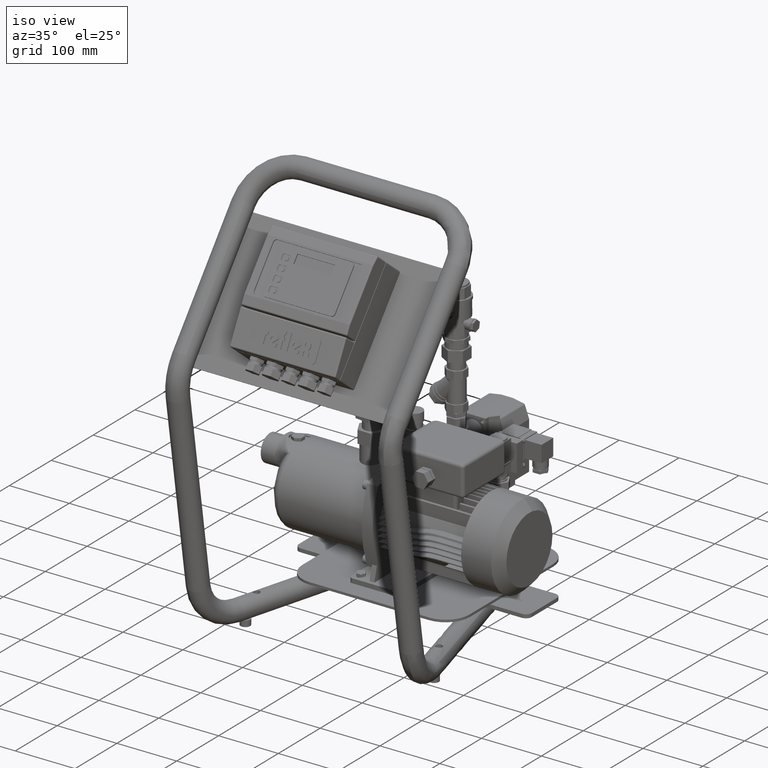
[diagram: clean part render]
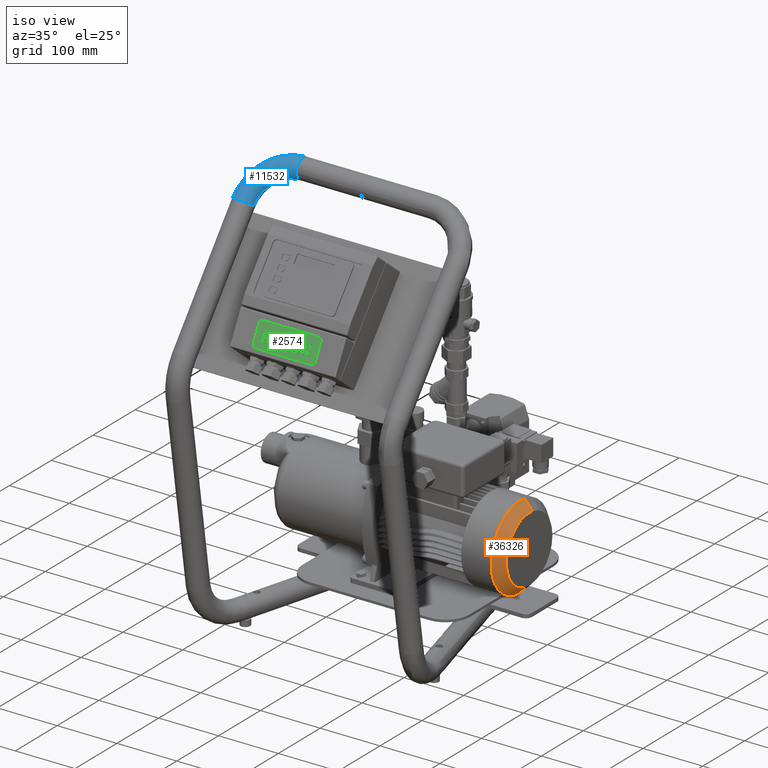
[diagram: same view with three faces highlighted in distinct colors, each labeled with its STEP entity id]
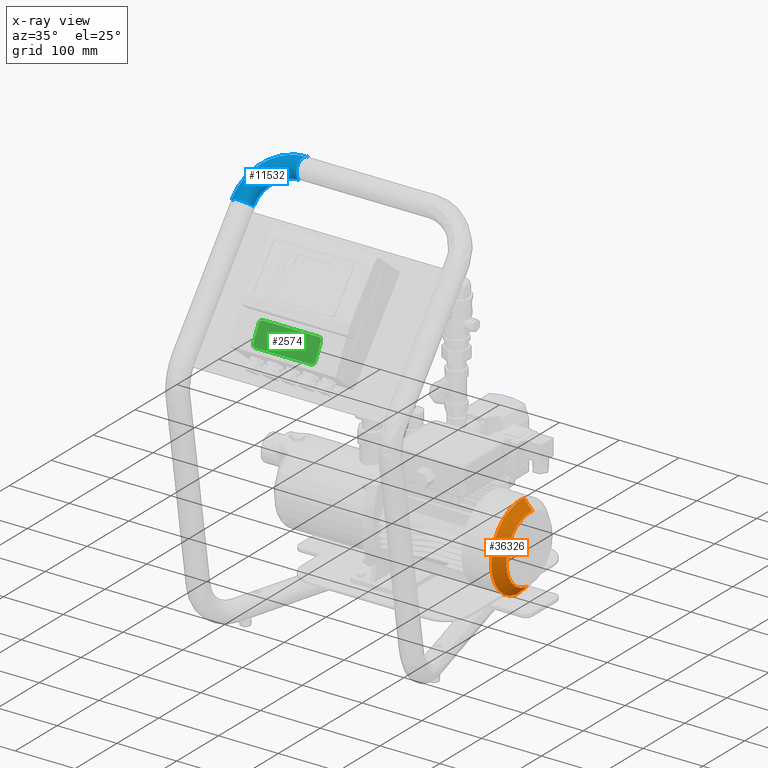
[diagram: x-ray of the same camera — body ghosted, the three highlighted faces saturated]
A machine part, iso view with three faces highlighted in distinct colors.
The next image is the same camera in x-ray (body ghosted, the three faces saturated) — at least one of them is partly hidden behind the body in this view.
Their STEP definitions:

[orange] entity #36326 — the highlighted conical surface has half-angle 45 deg.
#35521=CARTESIAN_POINT('',(177.999999999999970,-23.999999999999975,209.919017567234420));
#35522=VERTEX_POINT('',#35521);
#36277=CARTESIAN_POINT('',(177.999999999999970,-41.999999999999979,71.080982432765566));
#36278=VERTEX_POINT('',#36277);
#36285=CARTESIAN_POINT('',(177.999999999999970,-32.999999999999979,140.500000000000000));
#36286=DIRECTION('',(1.000000000000000,1.551542E-018,1.196739E-017));
#36287=DIRECTION('',(-1.206755E-017,0.128571428571429,0.991700250960492));
#36288=AXIS2_PLACEMENT_3D('',#36285,#36286,#36287);
#36289=CIRCLE('',#36288,70.0);
#36290=EDGE_CURVE('',#35522,#36278,#36289,.T.);
#36295=CARTESIAN_POINT('',(185.499999999999970,-32.999999999999979,140.500000000000000));
#36296=DIRECTION('',(-1.0,-9.385874E-017,3.398965E-032));
#36297=DIRECTION('',(-1.206755E-017,0.128571428571429,0.991700250960492));
#36298=AXIS2_PLACEMENT_3D('',#36295,#36296,#36297);
#36299=CONICAL_SURFACE('',#36298,62.500000000000014,44.999999999999993);
#36300=CARTESIAN_POINT('',(192.999999999999970,-25.928571428571402,195.043513802827050));
#36301=VERTEX_POINT('',#36300);
#36302=CARTESIAN_POINT('',(177.999999999999970,-23.999999999999975,209.919017567234420));
#36303=DIRECTION('',(0.707106781186548,-0.090913729009699,-0.701237972358564));
#36304=VECTOR('',#36303,21.213203435596423);
#36305=LINE('',#36302,#36304);
#36306=EDGE_CURVE('',#35522,#36301,#36305,.T.);
#36307=ORIENTED_EDGE('',*,*,#36306,.F.);
#36308=ORIENTED_EDGE('',*,*,#36290,.T.);
#36309=CARTESIAN_POINT('',(192.999999999999970,-40.071428571428548,85.956486197172936));
#36310=VERTEX_POINT('',#36309);
#36311=CARTESIAN_POINT('',(177.999999999999970,-41.999999999999979,71.080982432765566));
#36312=DIRECTION('',(0.707106781186548,0.090913729009699,0.701237972358564));
#36313=VECTOR('',#36312,21.213203435596423);
#36314=LINE('',#36311,#36313);
#36315=EDGE_CURVE('',#36278,#36310,#36314,.T.);
#36316=ORIENTED_EDGE('',*,*,#36315,.T.);
#36317=CARTESIAN_POINT('',(192.999999999999970,-32.999999999999986,140.500000000000000));
#36318=DIRECTION('',(-1.000000000000000,-1.551542E-018,-1.196739E-017));
#36319=DIRECTION('',(-1.206755E-017,0.128571428571429,0.991700250960492));
#36320=AXIS2_PLACEMENT_3D('',#36317,#36318,#36319);
#36321=CIRCLE('',#36320,55.000000000000007);
#36322=EDGE_CURVE('',#36310,#36301,#36321,.T.);
#36323=ORIENTED_EDGE('',*,*,#36322,.T.);
#36324=EDGE_LOOP('',(#36307,#36308,#36316,#36323));
#36325=FACE_OUTER_BOUND('',#36324,.T.);
#36326=ADVANCED_FACE('',(#36325),#36299,.T.);

[blue] entity #11532 — the highlighted toroidal blend (fillet) surface has major radius 70 mm and minor (blend) radius 16.85 mm.
#11471=CARTESIAN_POINT('',(-108.150000000000060,-186.469369452282170,622.601935115610670));
#11472=DIRECTION('',(-2.429091E-016,-0.782115212634134,0.623133849318317));
#11473=DIRECTION('',(-1.144678E-016,-0.623133849318317,-0.782115212634134));
#11474=AXIS2_PLACEMENT_3D('',#11471,#11472,#11473);
#11475=TOROIDAL_SURFACE('',#11474,69.999999999999986,16.850000000000001);
#11476=CARTESIAN_POINT('',(-195.000000000000060,-186.469369452282190,622.601935115610670));
#11477=VERTEX_POINT('',#11476);
#11478=CARTESIAN_POINT('',(-108.150000000000060,-132.350194638986380,690.528641332885170));
#11479=VERTEX_POINT('',#11478);
#11480=CARTESIAN_POINT('',(-108.150000000000060,-186.469369452282190,622.601935115610670));
#11481=DIRECTION('',(2.429091E-016,0.782115212634134,-0.623133849318317));
#11482=DIRECTION('',(-1.636253E-016,-0.623133849318317,-0.782115212634134));
#11483=AXIS2_PLACEMENT_3D('',#11480,#11481,#11482);
#11484=CIRCLE('',#11483,86.849999999999966);
#11485=EDGE_CURVE('',#11477,#11479,#11484,.T.);
#11486=ORIENTED_EDGE('',*,*,#11485,.F.);
#11487=CARTESIAN_POINT('',(-167.650194638986390,-196.776585320580720,630.813992618156930));
#11488=VERTEX_POINT('',#11487);
#11489=CARTESIAN_POINT('',(-178.150000000000030,-186.469369452282220,622.601935115610670));
#11490=DIRECTION('',(1.387779E-016,0.623133849318317,0.782115212634134));
#11491=DIRECTION('',(0.623133849318317,-0.611704205833737,0.487362463059122));
#11492=AXIS2_PLACEMENT_3D('',#11489,#11490,#11491);
#11493=CIRCLE('',#11492,16.850000000000005);
#11494=EDGE_CURVE('',#11477,#11488,#11493,.T.);
#11495=ORIENTED_EDGE('',*,*,#11494,.T.);
#11496=CARTESIAN_POINT('',(-161.300000000000010,-186.469369452282190,622.601935115610670));
#11497=VERTEX_POINT('',#11496);
#11498=CARTESIAN_POINT('',(-178.150000000000030,-186.469369452282220,622.601935115610670));
#11499=DIRECTION('',(1.387779E-016,0.623133849318317,0.782115212634134));
#11500=DIRECTION('',(0.623133849318317,-0.611704205833737,0.487362463059122));
#11501=AXIS2_PLACEMENT_3D('',#11498,#11499,#11500);
#11502=CIRCLE('',#11501,16.850000000000005);
#11503=EDGE_CURVE('',#11488,#11497,#11502,.T.);
#11504=ORIENTED_EDGE('',*,*,#11503,.T.);
#11505=CARTESIAN_POINT('',(-108.150000000000060,-153.349805361013670,664.171358667114870));
#11506=VERTEX_POINT('',#11505);
#11507=CARTESIAN_POINT('',(-108.150000000000060,-186.469369452282190,622.601935115610670));
#11508=DIRECTION('',(2.429091E-016,0.782115212634134,-0.623133849318317));
#11509=DIRECTION('',(9.742085E-032,-0.623133849318317,-0.782115212634134));
#11510=AXIS2_PLACEMENT_3D('',#11507,#11508,#11509);
#11511=CIRCLE('',#11510,53.149999999999977);
#11512=EDGE_CURVE('',#11497,#11506,#11511,.T.);
#11513=ORIENTED_EDGE('',*,*,#11512,.T.);
#11514=CARTESIAN_POINT('',(-108.150000000000050,-159.699999999999990,677.350000000000020));
#11515=VERTEX_POINT('',#11514);
#11516=CARTESIAN_POINT('',(-108.150000000000050,-142.849999999999990,677.350000000000020));
#11517=DIRECTION('',(1.0,0.0,0.0));
#11518=DIRECTION('',(0.0,-1.0,0.0));
#11519=AXIS2_PLACEMENT_3D('',#11516,#11517,#11518);
#11520=CIRCLE('',#11519,16.850000000000001);
#11521=EDGE_CURVE('',#11515,#11506,#11520,.T.);
#11522=ORIENTED_EDGE('',*,*,#11521,.F.);
#11523=CARTESIAN_POINT('',(-108.150000000000050,-142.849999999999990,677.350000000000020));
#11524=DIRECTION('',(1.0,0.0,0.0));
#11525=DIRECTION('',(0.0,-1.0,0.0));
#11526=AXIS2_PLACEMENT_3D('',#11523,#11524,#11525);
#11527=CIRCLE('',#11526,16.850000000000001);
#11528=EDGE_CURVE('',#11479,#11515,#11527,.T.);
#11529=ORIENTED_EDGE('',*,*,#11528,.F.);
#11530=EDGE_LOOP('',(#11486,#11495,#11504,#11513,#11522,#11529));
#11531=FACE_OUTER_BOUND('',#11530,.T.);
#11532=ADVANCED_FACE('',(#11531),#11475,.T.);

[green] entity #2574 — the highlighted planar face has unit normal (-0, -0.887, 0.4617).
#2499=CARTESIAN_POINT('',(-1.065814E-012,-336.160392955992510,516.950377569624040));
#2500=DIRECTION('',(-9.619845E-030,-0.887010833178222,0.461748613235034));
#2501=DIRECTION('',(1.0,0.0,0.0));
#2502=AXIS2_PLACEMENT_3D('',#2499,#2500,#2501);
#2503=PLANE('',#2502);
#2504=CARTESIAN_POINT('',(-46.365720187500116,-345.281903259890900,499.428119304852030));
#2505=VERTEX_POINT('',#2504);
#2506=CARTESIAN_POINT('',(-51.990720187500116,-342.684567310443750,504.417555241479480));
#2507=VERTEX_POINT('',#2506);
#2508=CARTESIAN_POINT('',(-46.365720187500116,-342.684567310443750,504.417555241479480));
#2509=DIRECTION('',(0.0,0.887010833178222,-0.461748613235034));
#2510=DIRECTION('',(-1.0,0.0,0.0));
#2511=AXIS2_PLACEMENT_3D('',#2508,#2509,#2510);
#2512=CIRCLE('',#2511,5.625000000000000);
#2513=EDGE_CURVE('',#2505,#2507,#2512,.T.);
#2514=ORIENTED_EDGE('',*,*,#2513,.F.);
#2515=CARTESIAN_POINT('',(46.365720187500031,-345.281903259891010,499.428119304851240));
#2516=VERTEX_POINT('',#2515);
#2517=CARTESIAN_POINT('',(46.365720187500031,-345.281903259891010,499.428119304851240));
#2518=DIRECTION('',(-1.0,0.0,0.0));
#2519=VECTOR('',#2518,92.731440375000147);
#2520=LINE('',#2517,#2519);
#2521=EDGE_CURVE('',#2516,#2505,#2520,.T.);
#2522=ORIENTED_EDGE('',*,*,#2521,.F.);
#2523=CARTESIAN_POINT('',(51.990720187500031,-342.684567310443750,504.417555241478680));
#2524=VERTEX_POINT('',#2523);
#2525=CARTESIAN_POINT('',(46.365720187500031,-342.684567310443750,504.417555241478680));
#2526=DIRECTION('',(0.0,0.887010833178222,-0.461748613235034));
#2527=DIRECTION('',(0.0,-0.461748613235034,-0.887010833178222));
#2528=AXIS2_PLACEMENT_3D('',#2525,#2526,#2527);
#2529=CIRCLE('',#2528,5.625000000000001);
#2530=EDGE_CURVE('',#2524,#2516,#2529,.T.);
#2531=ORIENTED_EDGE('',*,*,#2530,.F.);
#2532=CARTESIAN_POINT('',(51.990720187499008,-329.636218601540460,529.483199897769850));
#2533=VERTEX_POINT('',#2532);
#2534=CARTESIAN_POINT('',(51.990720187499008,-329.636218601540460,529.483199897769850));
#2535=DIRECTION('',(3.620785E-014,-0.461748613235024,-0.887010833178227));
#2536=VECTOR('',#2535,28.258555272069312);
#2537=LINE('',#2534,#2536);
#2538=EDGE_CURVE('',#2533,#2524,#2537,.T.);
#2539=ORIENTED_EDGE('',*,*,#2538,.F.);
#2540=CARTESIAN_POINT('',(46.365720187499008,-327.038882652093320,534.472635834397690));
#2541=VERTEX_POINT('',#2540);
#2542=CARTESIAN_POINT('',(46.365720187499008,-329.636218601540460,529.483199897769850));
#2543=DIRECTION('',(0.0,0.887010833178222,-0.461748613235034));
#2544=DIRECTION('',(1.0,0.0,0.0));
#2545=AXIS2_PLACEMENT_3D('',#2542,#2543,#2544);
#2546=CIRCLE('',#2545,5.625000000000000);
#2547=EDGE_CURVE('',#2541,#2533,#2546,.T.);
#2548=ORIENTED_EDGE('',*,*,#2547,.F.);
#2549=CARTESIAN_POINT('',(-46.365720187500116,-327.038882652093320,534.472635834397690));
#2550=VERTEX_POINT('',#2549);
#2551=CARTESIAN_POINT('',(-46.365720187500116,-327.038882652093320,534.472635834397690));
#2552=DIRECTION('',(1.0,0.0,0.0));
#2553=VECTOR('',#2552,92.731440374999124);
#2554=LINE('',#2551,#2553);
#2555=EDGE_CURVE('',#2550,#2541,#2554,.T.);
#2556=ORIENTED_EDGE('',*,*,#2555,.F.);
#2557=CARTESIAN_POINT('',(-51.990720187500116,-329.636218601540460,529.483199897769850));
#2558=VERTEX_POINT('',#2557);
#2559=CARTESIAN_POINT('',(-46.365720187500116,-329.636218601540460,529.483199897769850));
#2560=DIRECTION('',(0.0,0.887010833178222,-0.461748613235034));
#2561=DIRECTION('',(0.0,0.461748613235034,0.887010833178222));
#2562=AXIS2_PLACEMENT_3D('',#2559,#2560,#2561);
#2563=CIRCLE('',#2562,5.625000000000001);
#2564=EDGE_CURVE('',#2558,#2550,#2563,.T.);
#2565=ORIENTED_EDGE('',*,*,#2564,.F.);
#2566=CARTESIAN_POINT('',(-51.990720187500116,-342.684567310443750,504.417555241479480));
#2567=DIRECTION('',(0.0,0.461748613235036,0.887010833178221));
#2568=VECTOR('',#2567,28.258555272068605);
#2569=LINE('',#2566,#2568);
#2570=EDGE_CURVE('',#2507,#2558,#2569,.T.);
#2571=ORIENTED_EDGE('',*,*,#2570,.F.);
#2572=EDGE_LOOP('',(#2514,#2522,#2531,#2539,#2548,#2556,#2565,#2571));
#2573=FACE_OUTER_BOUND('',#2572,.T.);
#2574=ADVANCED_FACE('',(#2573),#2503,.T.);